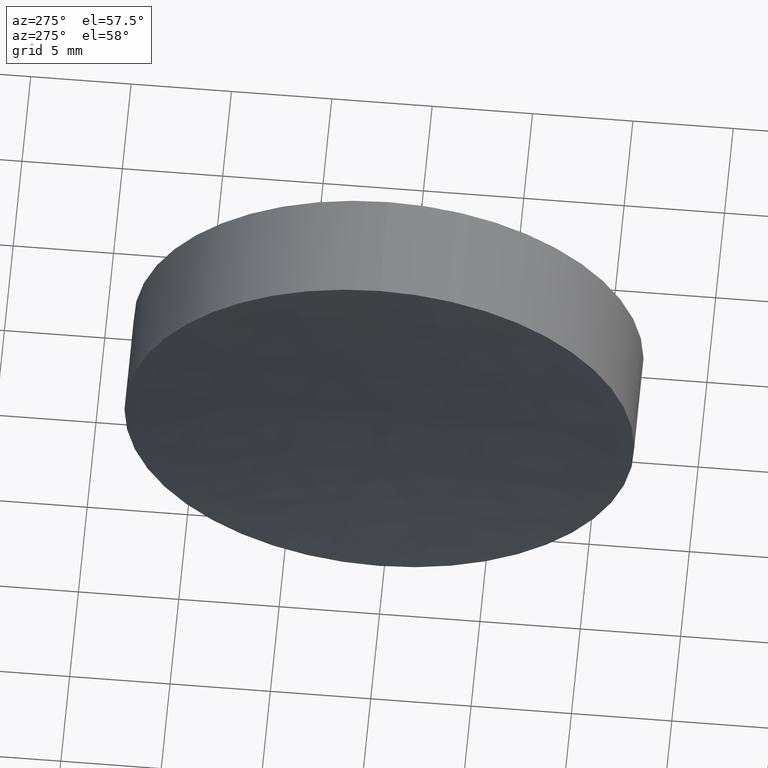
[diagram: clean part render]
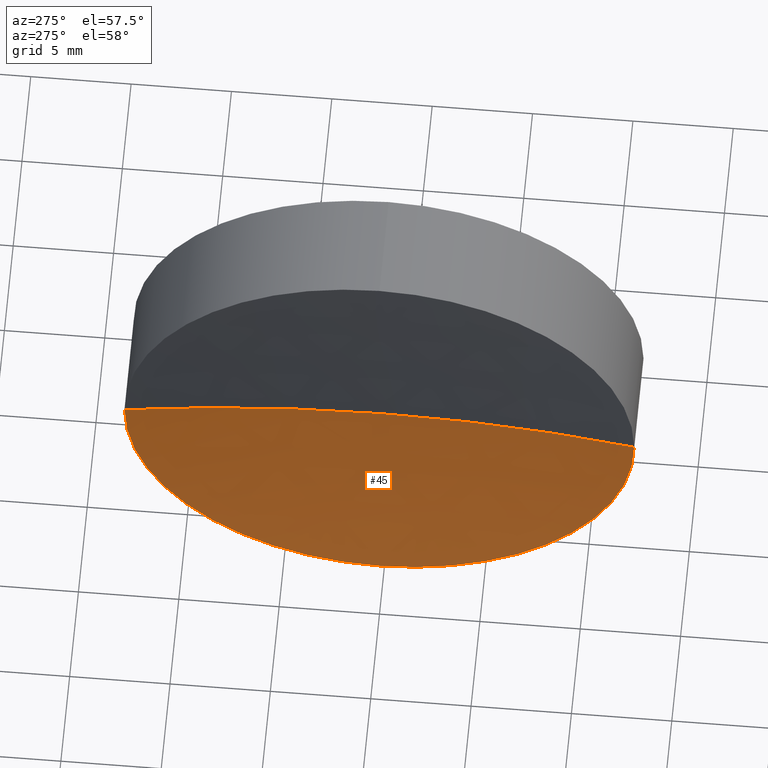
[diagram: same view with one face highlighted and labeled with its STEP entity id]
A machine part, auxiliary view. The second image highlights one B-rep face of the part: STEP entity #45.
In plain terms, the highlighted spherical surface has radius 92.6 mm.
Its self-contained STEP definition (entity closure, byte-faithful):
#3 = DIRECTION ( 'NONE',  ( 0.0000000000000000000, 0.0000000000000000000, -1.000000000000000000 ) ) ;
#4 = CARTESIAN_POINT ( 'NONE',  ( 117.4776727839183900, 77.92260287298734100, 0.0000000000000000000 ) ) ;
#8 = CARTESIAN_POINT ( 'NONE',  ( 117.4776727839183900, 65.22260287298739500, -12.69999999999997400 ) ) ;
#17 = EDGE_CURVE ( 'NONE', #141, #170, #18, .T. ) ;
#18 = CIRCLE ( 'NONE', #168, 92.59999999999999400 ) ;
#22 = CARTESIAN_POINT ( 'NONE',  ( 118.3527034462293300, 65.22260287298732400, 0.0000000000000000000 ) ) ;
#30 = SPHERICAL_SURFACE ( 'NONE', #144, 92.59999999999999400 ) ;
#34 = DIRECTION ( 'NONE',  ( 0.0000000000000000000, 1.224646799147353200E-016, -1.000000000000000000 ) ) ;
#36 = EDGE_CURVE ( 'NONE', #87, #52, #221, .T. ) ;
#40 = EDGE_CURVE ( 'NONE', #141, #52, #180, .T. ) ;
#43 = CIRCLE ( 'NONE', #208, 12.69999999999997400 ) ;
#45 = ADVANCED_FACE ( 'NONE', ( #76 ), #30, .F. ) ;
#51 = DIRECTION ( 'NONE',  ( 0.0000000000000000000, 1.000000000000000000, 1.224646799147353000E-016 ) ) ;
#52 = VERTEX_POINT ( 'NONE', #203 ) ;
#53 = DIRECTION ( 'NONE',  ( -1.000000000000000000, -0.0000000000000000000, -0.0000000000000000000 ) ) ;
#67 = CARTESIAN_POINT ( 'NONE',  ( 25.75270344622933300, 65.22260287298732400, 0.0000000000000000000 ) ) ;
#76 = FACE_OUTER_BOUND ( 'NONE', #178, .T. ) ;
#85 = DIRECTION ( 'NONE',  ( 0.0000000000000000000, 0.0000000000000000000, 1.000000000000000000 ) ) ;
#87 = VERTEX_POINT ( 'NONE', #8 ) ;
#89 = AXIS2_PLACEMENT_3D ( 'NONE', #223, #53, #167 ) ;
#100 = AXIS2_PLACEMENT_3D ( 'NONE', #204, #34, #51 ) ;
#112 = DIRECTION ( 'NONE',  ( 1.000000000000000000, 0.0000000000000000000, 0.0000000000000000000 ) ) ;
#119 = CARTESIAN_POINT ( 'NONE',  ( 117.4776727839183900, 65.22260287298739500, 0.0000000000000000000 ) ) ;
#122 = ORIENTED_EDGE ( 'NONE', *, *, #185, .T. ) ;
#127 = ORIENTED_EDGE ( 'NONE', *, *, #17, .T. ) ;
#141 = VERTEX_POINT ( 'NONE', #22 ) ;
#144 = AXIS2_PLACEMENT_3D ( 'NONE', #67, #3, #186 ) ;
#148 = CARTESIAN_POINT ( 'NONE',  ( 25.75270344622933300, 65.22260287298732400, 0.0000000000000000000 ) ) ;
#158 = ORIENTED_EDGE ( 'NONE', *, *, #40, .F. ) ;
#167 = DIRECTION ( 'NONE',  ( 0.0000000000000000000, 0.0000000000000000000, 1.000000000000000000 ) ) ;
#168 = AXIS2_PLACEMENT_3D ( 'NONE', #148, #85, #112 ) ;
#170 = VERTEX_POINT ( 'NONE', #4 ) ;
#178 = EDGE_LOOP ( 'NONE', ( #158, #127, #122, #196 ) ) ;
#180 = CIRCLE ( 'NONE', #100, 92.60000000000000900 ) ;
#185 = EDGE_CURVE ( 'NONE', #170, #87, #43, .T. ) ;
#186 = DIRECTION ( 'NONE',  ( 0.0000000000000000000, 1.000000000000000000, 0.0000000000000000000 ) ) ;
#187 = DIRECTION ( 'NONE',  ( -1.000000000000000000, -0.0000000000000000000, -0.0000000000000000000 ) ) ;
#196 = ORIENTED_EDGE ( 'NONE', *, *, #36, .T. ) ;
#203 = CARTESIAN_POINT ( 'NONE',  ( 117.4776727839183900, 52.52260287298737800, -1.555301434917131700E-015 ) ) ;
#204 = CARTESIAN_POINT ( 'NONE',  ( 25.75270344622933300, 65.22260287298732400, 0.0000000000000000000 ) ) ;
#208 = AXIS2_PLACEMENT_3D ( 'NONE', #119, #187, #213 ) ;
#213 = DIRECTION ( 'NONE',  ( 0.0000000000000000000, 0.0000000000000000000, 1.000000000000000000 ) ) ;
#221 = CIRCLE ( 'NONE', #89, 12.69999999999997400 ) ;
#223 = CARTESIAN_POINT ( 'NONE',  ( 117.4776727839183900, 65.22260287298739500, 0.0000000000000000000 ) ) ;